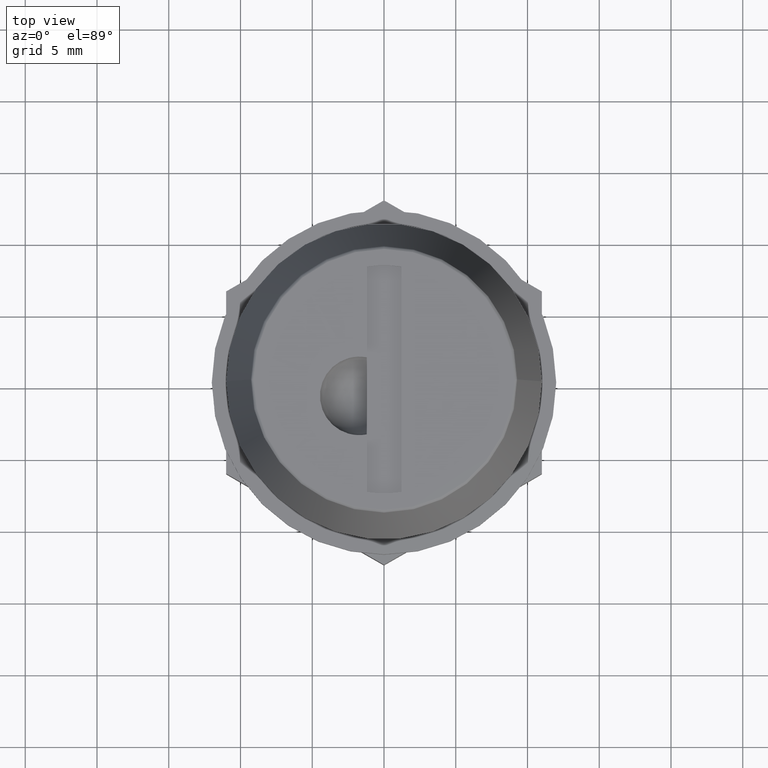
[diagram: clean part render]
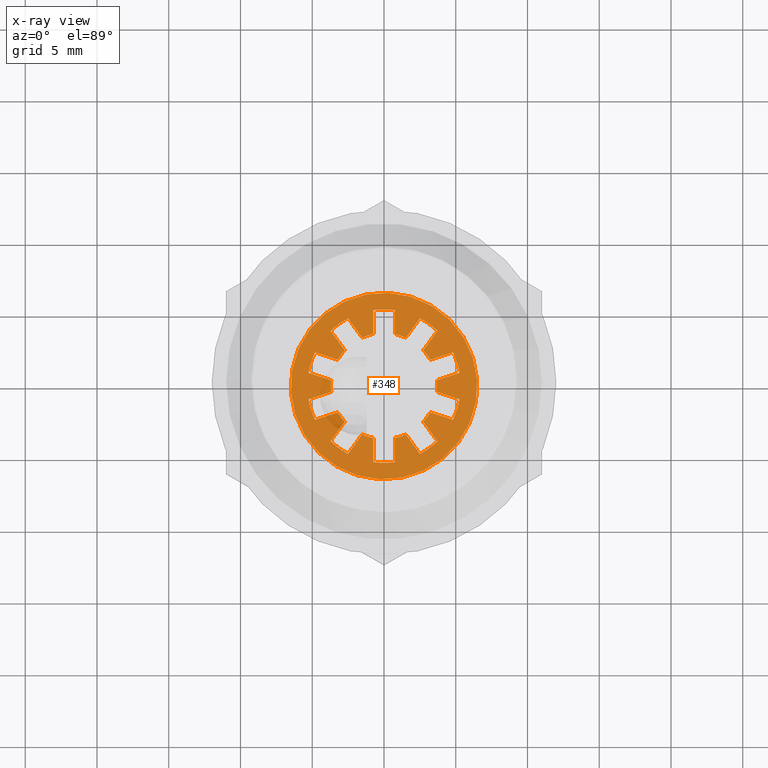
[diagram: x-ray — body ghosted, one internal face saturated and labeled with its STEP entity id]
A machine part, top view, then the same camera in x-ray: the body is ghosted and one INTERNAL B-rep face — a face not visible from any outside direction — is saturated and labeled: STEP entity #348.
In plain terms, the highlighted planar face has unit normal (0, 0, 1).
Its self-contained STEP definition (entity closure, byte-faithful):
#348=ADVANCED_FACE('',(#1300,#1301),#1299,.T.);
#1299=PLANE('',#2467);
#1300=FACE_OUTER_BOUND('',#2468,.T.);
#1301=FACE_BOUND('',#2469,.T.);
#2464=CARTESIAN_POINT('',(-3.86160911235E+000,-1.54599636178E+001,-2.13000000000E+001));
#2465=DIRECTION('',(0.00000000000E+000,-0.00000000000E+000,1.00000000000E+000));
#2466=DIRECTION('',(9.51056516295E-001,3.09016994375E-001,0.00000000000E+000));
#2467=AXIS2_PLACEMENT_3D('',#2464,#2465,#2466);
#2468=EDGE_LOOP('',(#3272,#3273));
#2469=EDGE_LOOP('',(#3274,#3275,#3276,#3277,#3278,#3279,#3280,#3281,#3282,#3283,#3284,#3285,#3286,#3287,#3288,#3289,#3290,#3291,#3292,#3293,#3294,#3295,#3296,#3297,#3298,#3299,#3300,#3301,#3302,#3303,#3304,#3305,#3306,#3307,#3308,#3309,#3310,#3311,#3312,#3313));
#3272=ORIENTED_EDGE('',*,*,#3894,.F.);
#3273=ORIENTED_EDGE('',*,*,#3895,.F.);
#3274=ORIENTED_EDGE('',*,*,#3783,.T.);
#3275=ORIENTED_EDGE('',*,*,#3778,.T.);
#3276=ORIENTED_EDGE('',*,*,#3775,.T.);
#3277=ORIENTED_EDGE('',*,*,#3889,.T.);
#3278=ORIENTED_EDGE('',*,*,#3793,.T.);
#3279=ORIENTED_EDGE('',*,*,#3784,.T.);
#3280=ORIENTED_EDGE('',*,*,#3789,.T.);
#3281=ORIENTED_EDGE('',*,*,#3887,.T.);
#3282=ORIENTED_EDGE('',*,*,#3803,.T.);
#3283=ORIENTED_EDGE('',*,*,#3794,.T.);
#3284=ORIENTED_EDGE('',*,*,#3799,.T.);
#3285=ORIENTED_EDGE('',*,*,#3885,.T.);
#3286=ORIENTED_EDGE('',*,*,#3813,.T.);
#3287=ORIENTED_EDGE('',*,*,#3804,.T.);
#3288=ORIENTED_EDGE('',*,*,#3809,.T.);
#3289=ORIENTED_EDGE('',*,*,#3883,.T.);
#3290=ORIENTED_EDGE('',*,*,#3823,.T.);
#3291=ORIENTED_EDGE('',*,*,#3814,.T.);
#3292=ORIENTED_EDGE('',*,*,#3819,.T.);
#3293=ORIENTED_EDGE('',*,*,#3881,.T.);
#3294=ORIENTED_EDGE('',*,*,#3833,.T.);
#3295=ORIENTED_EDGE('',*,*,#3824,.T.);
#3296=ORIENTED_EDGE('',*,*,#3829,.T.);
#3297=ORIENTED_EDGE('',*,*,#3879,.T.);
#3298=ORIENTED_EDGE('',*,*,#3843,.T.);
#3299=ORIENTED_EDGE('',*,*,#3834,.T.);
#3300=ORIENTED_EDGE('',*,*,#3839,.T.);
#3301=ORIENTED_EDGE('',*,*,#3877,.T.);
#3302=ORIENTED_EDGE('',*,*,#3853,.T.);
#3303=ORIENTED_EDGE('',*,*,#3844,.T.);
#3304=ORIENTED_EDGE('',*,*,#3849,.T.);
#3305=ORIENTED_EDGE('',*,*,#3875,.T.);
#3306=ORIENTED_EDGE('',*,*,#3863,.T.);
#3307=ORIENTED_EDGE('',*,*,#3854,.T.);
#3308=ORIENTED_EDGE('',*,*,#3859,.T.);
#3309=ORIENTED_EDGE('',*,*,#3873,.T.);
#3310=ORIENTED_EDGE('',*,*,#3871,.T.);
#3311=ORIENTED_EDGE('',*,*,#3893,.T.);
#3312=ORIENTED_EDGE('',*,*,#3865,.T.);
#3313=ORIENTED_EDGE('',*,*,#3890,.T.);
#3775=EDGE_CURVE('',#4747,#4739,#4748,.T.);
#3778=EDGE_CURVE('',#4767,#4747,#4768,.T.);
#3783=EDGE_CURVE('',#4788,#4767,#4801,.T.);
#3784=EDGE_CURVE('',#4807,#4808,#4809,.T.);
#3789=EDGE_CURVE('',#4808,#4835,#4843,.T.);
#3793=EDGE_CURVE('',#4856,#4807,#4869,.T.);
#3794=EDGE_CURVE('',#4875,#4876,#4877,.T.);
#3799=EDGE_CURVE('',#4876,#4903,#4911,.T.);
#3803=EDGE_CURVE('',#4924,#4875,#4937,.T.);
#3804=EDGE_CURVE('',#4943,#4944,#4945,.T.);
#3809=EDGE_CURVE('',#4944,#4971,#4979,.T.);
#3813=EDGE_CURVE('',#4992,#4943,#5005,.T.);
#3814=EDGE_CURVE('',#5011,#5012,#5013,.T.);
#3819=EDGE_CURVE('',#5012,#5039,#5047,.T.);
#3823=EDGE_CURVE('',#5060,#5011,#5073,.T.);
#3824=EDGE_CURVE('',#5079,#5080,#5081,.T.);
#3829=EDGE_CURVE('',#5080,#5107,#5115,.T.);
#3833=EDGE_CURVE('',#5128,#5079,#5141,.T.);
#3834=EDGE_CURVE('',#5147,#5148,#5149,.T.);
#3839=EDGE_CURVE('',#5148,#5175,#5183,.T.);
#3843=EDGE_CURVE('',#5196,#5147,#5209,.T.);
#3844=EDGE_CURVE('',#5215,#5216,#5217,.T.);
#3849=EDGE_CURVE('',#5216,#5243,#5251,.T.);
#3853=EDGE_CURVE('',#5264,#5215,#5277,.T.);
#3854=EDGE_CURVE('',#5283,#5284,#5285,.T.);
#3859=EDGE_CURVE('',#5284,#5311,#5319,.T.);
#3863=EDGE_CURVE('',#5332,#5283,#5345,.T.);
#3865=EDGE_CURVE('',#5359,#5351,#5360,.T.);
#3871=EDGE_CURVE('',#5380,#5394,#5401,.T.);
#3873=EDGE_CURVE('',#5311,#5380,#5413,.T.);
#3875=EDGE_CURVE('',#5243,#5332,#5425,.T.);
#3877=EDGE_CURVE('',#5175,#5264,#5437,.T.);
#3879=EDGE_CURVE('',#5107,#5196,#5449,.T.);
#3881=EDGE_CURVE('',#5039,#5128,#5461,.T.);
#3883=EDGE_CURVE('',#4971,#5060,#5473,.T.);
#3885=EDGE_CURVE('',#4903,#4992,#5485,.T.);
#3887=EDGE_CURVE('',#4835,#4924,#5497,.T.);
#3889=EDGE_CURVE('',#4739,#4856,#5509,.T.);
#3890=EDGE_CURVE('',#5351,#4788,#5515,.T.);
#3893=EDGE_CURVE('',#5394,#5359,#5533,.T.);
#3894=EDGE_CURVE('',#5539,#5540,#5541,.T.);
#3895=EDGE_CURVE('',#5540,#5539,#5547,.T.);
#4739=VERTEX_POINT('',#7036);
#4747=VERTEX_POINT('',#7041);
#4748=LINE('',#7042,#7043);
#4767=VERTEX_POINT('',#7052);
#4768=CIRCLE('',#7056,5.34999999998E+000);
#4788=VERTEX_POINT('',#7066);
#4801=LINE('',#7073,#7074);
#4807=VERTEX_POINT('',#7076);
#4808=VERTEX_POINT('',#7077);
#4809=CIRCLE('',#7081,5.34999999998E+000);
#4835=VERTEX_POINT('',#7094);
#4843=LINE('',#7099,#7100);
#4856=VERTEX_POINT('',#7106);
#4869=LINE('',#7113,#7114);
#4875=VERTEX_POINT('',#7116);
#4876=VERTEX_POINT('',#7117);
#4877=CIRCLE('',#7121,5.34999999998E+000);
#4903=VERTEX_POINT('',#7134);
#4911=LINE('',#7139,#7140);
#4924=VERTEX_POINT('',#7146);
#4937=LINE('',#7153,#7154);
#4943=VERTEX_POINT('',#7156);
#4944=VERTEX_POINT('',#7157);
#4945=CIRCLE('',#7161,5.34999999998E+000);
#4971=VERTEX_POINT('',#7174);
#4979=LINE('',#7179,#7180);
#4992=VERTEX_POINT('',#7186);
#5005=LINE('',#7193,#7194);
#5011=VERTEX_POINT('',#7196);
#5012=VERTEX_POINT('',#7197);
#5013=CIRCLE('',#7201,5.34999999998E+000);
#5039=VERTEX_POINT('',#7214);
#5047=LINE('',#7219,#7220);
#5060=VERTEX_POINT('',#7226);
#5073=LINE('',#7233,#7234);
#5079=VERTEX_POINT('',#7236);
#5080=VERTEX_POINT('',#7237);
#5081=CIRCLE('',#7241,5.34999999998E+000);
#5107=VERTEX_POINT('',#7254);
#5115=LINE('',#7259,#7260);
#5128=VERTEX_POINT('',#7266);
#5141=LINE('',#7273,#7274);
#5147=VERTEX_POINT('',#7276);
#5148=VERTEX_POINT('',#7277);
#5149=CIRCLE('',#7281,5.34999999998E+000);
#5175=VERTEX_POINT('',#7294);
#5183=LINE('',#7299,#7300);
#5196=VERTEX_POINT('',#7306);
#5209=LINE('',#7313,#7314);
#5215=VERTEX_POINT('',#7316);
#5216=VERTEX_POINT('',#7317);
#5217=CIRCLE('',#7321,5.34999999998E+000);
#5243=VERTEX_POINT('',#7334);
#5251=LINE('',#7339,#7340);
#5264=VERTEX_POINT('',#7346);
#5277=LINE('',#7353,#7354);
#5283=VERTEX_POINT('',#7356);
#5284=VERTEX_POINT('',#7357);
#5285=CIRCLE('',#7361,5.34999999998E+000);
#5311=VERTEX_POINT('',#7374);
#5319=LINE('',#7379,#7380);
#5332=VERTEX_POINT('',#7386);
#5345=LINE('',#7393,#7394);
#5351=VERTEX_POINT('',#7396);
#5359=VERTEX_POINT('',#7401);
#5360=LINE('',#7402,#7403);
#5380=VERTEX_POINT('',#7413);
#5394=VERTEX_POINT('',#7421);
#5401=LINE('',#7425,#7426);
#5413=CIRCLE('',#7435,3.70000000024E+000);
#5425=CIRCLE('',#7443,3.70000000024E+000);
#5437=CIRCLE('',#7451,3.70000000024E+000);
#5449=CIRCLE('',#7459,3.70000000024E+000);
#5461=CIRCLE('',#7467,3.70000000024E+000);
#5473=CIRCLE('',#7475,3.70000000024E+000);
#5485=CIRCLE('',#7483,3.70000000024E+000);
#5497=CIRCLE('',#7491,3.70000000024E+000);
#5509=CIRCLE('',#7499,3.70000000024E+000);
#5515=CIRCLE('',#7503,3.70000000024E+000);
#5533=CIRCLE('',#7515,5.34999999987E+000);
#5539=VERTEX_POINT('',#7516);
#5540=VERTEX_POINT('',#7517);
#5541=CIRCLE('',#7521,6.50000000000E+000);
#5547=CIRCLE('',#7525,6.50000000000E+000);
#7036=CARTESIAN_POINT('',(3.21409495578E+000,-1.83291942514E+000,-2.13000000000E+001));
#7041=CARTESIAN_POINT('',(4.80614440244E+000,-2.35020764689E+000,-2.13000000000E+001));
#7042=CARTESIAN_POINT('',(4.80614440244E+000,-2.35020764689E+000,-2.13000000000E+001));
#7043=VECTOR('',#7044,1.67397985202E+000);
#7044=DIRECTION('',(-9.51056516444E-001,3.09016993917E-001,0.00000000000E+000));
#7052=CARTESIAN_POINT('',(5.26966989376E+000,-9.23622873121E-001,-2.13000000000E+001));
#7053=CARTESIAN_POINT('',(2.36658271566E-030,-1.57772181044E-030,-2.13000000000E+001));
#7054=DIRECTION('',(-3.12041730293E-015,-6.26384236490E-015,-1.00000000000E+000));
#7055=DIRECTION('',(-9.84985026860E-001,1.72639789333E-001,1.99217589465E-015));
#7056=AXIS2_PLACEMENT_3D('',#7053,#7054,#7055);
#7066=CARTESIAN_POINT('',(3.67762044679E+000,-4.06334650421E-001,-2.13000000000E+001));
#7073=CARTESIAN_POINT('',(3.67762044679E+000,-4.06334650421E-001,-2.13000000000E+001));
#7074=VECTOR('',#7075,1.67397985261E+000);
#7075=DIRECTION('',(9.51056516295E-001,-3.09016994376E-001,0.00000000000E+000));
#7076=CARTESIAN_POINT('',(3.72036059496E+000,-3.84466084854E+000,-2.13000000000E+001));
#7077=CARTESIAN_POINT('',(2.50683510396E+000,-4.72633872726E+000,-2.13000000000E+001));
#7078=CARTESIAN_POINT('',(-4.73316543133E-030,1.57772181044E-030,-2.13000000000E+001));
#7079=DIRECTION('',(-6.20626479239E-015,-3.23341965163E-015,-1.00000000000E+000));
#7080=DIRECTION('',(-6.95394503806E-001,7.18628195993E-001,1.99217589465E-015));
#7081=AXIS2_PLACEMENT_3D('',#7078,#7079,#7080);
#7094=CARTESIAN_POINT('',(1.52289443366E+000,-3.37206057833E+000,-2.13000000000E+001));
#7099=CARTESIAN_POINT('',(2.50683510396E+000,-4.72633872726E+000,-2.13000000000E+001));
#7100=VECTOR('',#7101,1.67397985273E+000);
#7101=DIRECTION('',(-5.87785252427E-001,8.09016994277E-001,0.00000000000E+000));
#7106=CARTESIAN_POINT('',(2.73641992562E+000,-2.49038269930E+000,-2.13000000000E+001));
#7113=CARTESIAN_POINT('',(2.73641992562E+000,-2.49038269930E+000,-2.13000000000E+001));
#7114=VECTOR('',#7115,1.67397985242E+000);
#7115=DIRECTION('',(5.87785251968E-001,-8.09016994611E-001,0.00000000000E+000));
#7116=CARTESIAN_POINT('',(7.50000000026E-001,-5.29716905556E+000,-2.13000000000E+001));
#7117=CARTESIAN_POINT('',(-7.49999999688E-001,-5.29716905501E+000,-2.13000000000E+001));
#7118=CARTESIAN_POINT('',(5.52202633655E-030,-4.53595020502E-030,-2.13000000000E+001));
#7119=DIRECTION('',(-6.92153007433E-015,1.03205946867E-015,-1.00000000000E+000));
#7120=DIRECTION('',(-1.40186915888E-001,9.90125057058E-001,1.99217589465E-015));
#7121=AXIS2_PLACEMENT_3D('',#7118,#7119,#7120);
#7134=CARTESIAN_POINT('',(-7.50000000360E-001,-3.62318920259E+000,-2.13000000000E+001));
#7139=CARTESIAN_POINT('',(-7.49999999688E-001,-5.29716905501E+000,-2.13000000000E+001));
#7140=VECTOR('',#7141,1.67397985242E+000);
#7141=DIRECTION('',(-4.01690488656E-010,1.00000000000E+000,0.00000000000E+000));
#7146=CARTESIAN_POINT('',(7.50000000305E-001,-3.62318920283E+000,-2.13000000000E+001));
#7153=CARTESIAN_POINT('',(7.50000000305E-001,-3.62318920283E+000,-2.13000000000E+001));
#7154=VECTOR('',#7155,1.67397985273E+000);
#7155=DIRECTION('',(-1.66450499066E-010,-1.00000000000E+000,0.00000000000E+000));
#7156=CARTESIAN_POINT('',(-2.50683510433E+000,-4.72633872679E+000,-2.13000000000E+001));
#7157=CARTESIAN_POINT('',(-3.72036059530E+000,-3.84466084875E+000,-2.13000000000E+001));
#7158=CARTESIAN_POINT('',(-3.94430452611E-030,7.88860905221E-031,-2.13000000000E+001));
#7159=DIRECTION('',(-4.99300612204E-015,4.90332695036E-015,-1.00000000000E+000));
#7160=DIRECTION('',(4.68567309122E-001,8.83427799440E-001,1.99217589465E-015));
#7161=AXIS2_PLACEMENT_3D('',#7158,#7159,#7160);
#7174=CARTESIAN_POINT('',(-2.73641992530E+000,-2.49038269975E+000,-2.13000000000E+001));
#7179=CARTESIAN_POINT('',(-3.72036059530E+000,-3.84466084875E+000,-2.13000000000E+001));
#7180=VECTOR('',#7181,1.67397985261E+000);
#7181=DIRECTION('',(5.87785252291E-001,8.09016994376E-001,0.00000000000E+000));
#7186=CARTESIAN_POINT('',(-1.52289443402E+000,-3.37206057874E+000,-2.13000000000E+001));
#7193=CARTESIAN_POINT('',(-1.52289443402E+000,-3.37206057874E+000,-2.13000000000E+001));
#7194=VECTOR('',#7195,1.67397985202E+000);
#7195=DIRECTION('',(-5.87785252682E-001,-8.09016994092E-001,0.00000000000E+000));
#7196=CARTESIAN_POINT('',(-4.80614440189E+000,-2.35020764729E+000,-2.13000000000E+001));
#7197=CARTESIAN_POINT('',(-5.26966989346E+000,-9.23622872851E-001,-2.13000000000E+001));
#7198=CARTESIAN_POINT('',(3.94430452611E-031,2.36658271566E-030,-2.13000000000E+001));
#7199=DIRECTION('',(-1.15732353716E-015,6.90169019495E-015,-1.00000000000E+000));
#7200=DIRECTION('',(8.98344748064E-001,4.39291149042E-001,1.99217589465E-015));
#7201=AXIS2_PLACEMENT_3D('',#7198,#7199,#7200);
#7214=CARTESIAN_POINT('',(-3.67762044706E+000,-4.06334650341E-001,-2.13000000000E+001));
#7219=CARTESIAN_POINT('',(-5.26966989346E+000,-9.23622872851E-001,-2.13000000000E+001));
#7220=VECTOR('',#7221,1.67397985200E+000);
#7221=DIRECTION('',(9.51056516295E-001,3.09016994375E-001,0.00000000000E+000));
#7226=CARTESIAN_POINT('',(-3.21409495550E+000,-1.83291942478E+000,-2.13000000000E+001));
#7233=CARTESIAN_POINT('',(-3.21409495550E+000,-1.83291942478E+000,-2.13000000000E+001));
#7234=VECTOR('',#7235,1.67397985200E+000);
#7235=DIRECTION('',(-9.51056516295E-001,-3.09016994375E-001,0.00000000000E+000));
#7236=CARTESIAN_POINT('',(-5.26966989376E+000,9.23622873121E-001,-2.13000000000E+001));
#7237=CARTESIAN_POINT('',(-4.80614440244E+000,2.35020764689E+000,-2.13000000000E+001));
#7238=CARTESIAN_POINT('',(1.57772181044E-030,-2.36658271566E-030,-2.13000000000E+001));
#7239=DIRECTION('',(3.12041730293E-015,6.26384236490E-015,-1.00000000000E+000));
#7240=DIRECTION('',(9.84985026860E-001,-1.72639789333E-001,1.99217589465E-015));
#7241=AXIS2_PLACEMENT_3D('',#7238,#7239,#7240);
#7254=CARTESIAN_POINT('',(-3.21409495578E+000,1.83291942514E+000,-2.13000000000E+001));
#7259=CARTESIAN_POINT('',(-4.80614440244E+000,2.35020764689E+000,-2.13000000000E+001));
#7260=VECTOR('',#7261,1.67397985202E+000);
#7261=DIRECTION('',(9.51056516444E-001,-3.09016993917E-001,0.00000000000E+000));
#7266=CARTESIAN_POINT('',(-3.67762044679E+000,4.06334650421E-001,-2.13000000000E+001));
#7273=CARTESIAN_POINT('',(-3.67762044679E+000,4.06334650421E-001,-2.13000000000E+001));
#7274=VECTOR('',#7275,1.67397985261E+000);
#7275=DIRECTION('',(-9.51056516295E-001,3.09016994376E-001,0.00000000000E+000));
#7276=CARTESIAN_POINT('',(-3.72036059496E+000,3.84466084854E+000,-2.13000000000E+001));
#7277=CARTESIAN_POINT('',(-2.50683510396E+000,4.72633872726E+000,-2.13000000000E+001));
#7278=CARTESIAN_POINT('',(7.88860905221E-031,3.54987407349E-030,-2.13000000000E+001));
#7279=DIRECTION('',(6.20626479239E-015,3.23341965163E-015,-1.00000000000E+000));
#7280=DIRECTION('',(6.95394503806E-001,-7.18628195993E-001,1.99217589465E-015));
#7281=AXIS2_PLACEMENT_3D('',#7278,#7279,#7280);
#7294=CARTESIAN_POINT('',(-1.52289443366E+000,3.37206057833E+000,-2.13000000000E+001));
#7299=CARTESIAN_POINT('',(-2.50683510396E+000,4.72633872726E+000,-2.13000000000E+001));
#7300=VECTOR('',#7301,1.67397985273E+000);
#7301=DIRECTION('',(5.87785252427E-001,-8.09016994277E-001,0.00000000000E+000));
#7306=CARTESIAN_POINT('',(-2.73641992562E+000,2.49038269930E+000,-2.13000000000E+001));
#7313=CARTESIAN_POINT('',(-2.73641992562E+000,2.49038269930E+000,-2.13000000000E+001));
#7314=VECTOR('',#7315,1.67397985242E+000);
#7315=DIRECTION('',(-5.87785251968E-001,8.09016994611E-001,0.00000000000E+000));
#7316=CARTESIAN_POINT('',(-7.50000000026E-001,5.29716905556E+000,-2.13000000000E+001));
#7317=CARTESIAN_POINT('',(7.49999999688E-001,5.29716905501E+000,-2.13000000000E+001));
#7318=CARTESIAN_POINT('',(2.36658271566E-030,-4.24012736556E-030,-2.13000000000E+001));
#7319=DIRECTION('',(6.92153007433E-015,-1.03205946867E-015,-1.00000000000E+000));
#7320=DIRECTION('',(1.40186915888E-001,-9.90125057058E-001,1.99217589465E-015));
#7321=AXIS2_PLACEMENT_3D('',#7318,#7319,#7320);
#7334=CARTESIAN_POINT('',(7.50000000360E-001,3.62318920259E+000,-2.13000000000E+001));
#7339=CARTESIAN_POINT('',(7.49999999688E-001,5.29716905501E+000,-2.13000000000E+001));
#7340=VECTOR('',#7341,1.67397985242E+000);
#7341=DIRECTION('',(4.01690488656E-010,-1.00000000000E+000,0.00000000000E+000));
#7346=CARTESIAN_POINT('',(-7.50000000305E-001,3.62318920283E+000,-2.13000000000E+001));
#7353=CARTESIAN_POINT('',(-7.50000000305E-001,3.62318920283E+000,-2.13000000000E+001));
#7354=VECTOR('',#7355,1.67397985273E+000);
#7355=DIRECTION('',(1.66450499066E-010,1.00000000000E+000,0.00000000000E+000));
#7356=CARTESIAN_POINT('',(2.50683510433E+000,4.72633872679E+000,-2.13000000000E+001));
#7357=CARTESIAN_POINT('',(3.72036059530E+000,3.84466084875E+000,-2.13000000000E+001));
#7358=CARTESIAN_POINT('',(-7.09974814699E-030,0.00000000000E+000,-2.13000000000E+001));
#7359=DIRECTION('',(4.99300612204E-015,-4.90332695036E-015,-1.00000000000E+000));
#7360=DIRECTION('',(-4.68567309122E-001,-8.83427799440E-001,1.99217589465E-015));
#7361=AXIS2_PLACEMENT_3D('',#7358,#7359,#7360);
#7374=CARTESIAN_POINT('',(2.73641992530E+000,2.49038269975E+000,-2.13000000000E+001));
#7379=CARTESIAN_POINT('',(3.72036059530E+000,3.84466084875E+000,-2.13000000000E+001));
#7380=VECTOR('',#7381,1.67397985261E+000);
#7381=DIRECTION('',(-5.87785252291E-001,-8.09016994376E-001,0.00000000000E+000));
#7386=CARTESIAN_POINT('',(1.52289443402E+000,3.37206057874E+000,-2.13000000000E+001));
#7393=CARTESIAN_POINT('',(1.52289443402E+000,3.37206057874E+000,-2.13000000000E+001));
#7394=VECTOR('',#7395,1.67397985202E+000);
#7395=DIRECTION('',(5.87785252682E-001,8.09016994092E-001,0.00000000000E+000));
#7396=CARTESIAN_POINT('',(3.67762044706E+000,4.06334650341E-001,-2.13000000000E+001));
#7401=CARTESIAN_POINT('',(5.26966989346E+000,9.23622872851E-001,-2.13000000000E+001));
#7402=CARTESIAN_POINT('',(5.26966989346E+000,9.23622872851E-001,-2.13000000000E+001));
#7403=VECTOR('',#7404,1.67397985200E+000);
#7404=DIRECTION('',(-9.51056516295E-001,-3.09016994375E-001,0.00000000000E+000));
#7413=CARTESIAN_POINT('',(3.21409495550E+000,1.83291942478E+000,-2.13000000000E+001));
#7421=CARTESIAN_POINT('',(4.80614440189E+000,2.35020764729E+000,-2.13000000000E+001));
#7425=CARTESIAN_POINT('',(3.21409495550E+000,1.83291942478E+000,-2.13000000000E+001));
#7426=VECTOR('',#7427,1.67397985200E+000);
#7427=DIRECTION('',(9.51056516295E-001,3.09016994375E-001,0.00000000000E+000));
#7432=CARTESIAN_POINT('',(-7.88860905221E-031,-2.36658271566E-030,-2.13000000000E+001));
#7433=DIRECTION('',(3.87656467600E-015,-5.68612306136E-015,-1.00000000000E+000));
#7434=DIRECTION('',(-7.39572952841E-001,-6.73076405341E-001,9.60192886162E-016));
#7435=AXIS2_PLACEMENT_3D('',#7432,#7433,#7434);
#7440=CARTESIAN_POINT('',(5.52202633655E-030,-7.88860905221E-031,-2.13000000000E+001));
#7441=DIRECTION('',(6.47842598086E-015,-2.32158264264E-015,-1.00000000000E+000));
#7442=DIRECTION('',(-2.02702702703E-001,-9.79240325108E-001,9.60192886162E-016));
#7443=AXIS2_PLACEMENT_3D('',#7440,#7441,#7442);
#7448=CARTESIAN_POINT('',(6.31088724177E-030,1.77493703675E-030,-2.13000000000E+001));
#7449=DIRECTION('',(6.60574875464E-015,1.92972343788E-015,-1.00000000000E+000));
#7450=DIRECTION('',(4.11593090256E-001,-9.11367723838E-001,9.60192886162E-016));
#7451=AXIS2_PLACEMENT_3D('',#7448,#7449,#7450);
#7456=CARTESIAN_POINT('',(1.57772181044E-030,-7.88860905221E-030,-2.13000000000E+001));
#7457=DIRECTION('',(4.20990002529E-015,5.44394075401E-015,-1.00000000000E+000));
#7458=DIRECTION('',(8.68674312272E-001,-4.95383628312E-001,9.60192886162E-016));
#7459=AXIS2_PLACEMENT_3D('',#7456,#7457,#7458);
#7464=CARTESIAN_POINT('',(1.38050658414E-030,2.36658271566E-030,-2.13000000000E+001));
#7465=DIRECTION('',(2.06012575513E-016,6.87875773486E-015,-1.00000000000E+000));
#7466=DIRECTION('',(9.93951472154E-001,1.09820175759E-001,9.60192886162E-016));
#7467=AXIS2_PLACEMENT_3D('',#7464,#7465,#7466);
#7472=CARTESIAN_POINT('',(1.57772181044E-030,2.36658271566E-030,-2.13000000000E+001));
#7473=DIRECTION('',(-3.87656467600E-015,5.68612306136E-015,-1.00000000000E+000));
#7474=DIRECTION('',(7.39572952841E-001,6.73076405341E-001,9.60192886162E-016));
#7475=AXIS2_PLACEMENT_3D('',#7472,#7473,#7474);
#7480=CARTESIAN_POINT('',(1.57772181044E-030,1.18329135783E-030,-2.13000000000E+001));
#7481=DIRECTION('',(-6.47842598086E-015,2.32158264264E-015,-1.00000000000E+000));
#7482=DIRECTION('',(2.02702702703E-001,9.79240325108E-001,9.60192886162E-016));
#7483=AXIS2_PLACEMENT_3D('',#7480,#7481,#7482);
#7488=CARTESIAN_POINT('',(3.15544362088E-030,9.86076131526E-031,-2.13000000000E+001));
#7489=DIRECTION('',(-6.60574875464E-015,-1.92972343788E-015,-1.00000000000E+000));
#7490=DIRECTION('',(-4.11593090256E-001,9.11367723838E-001,9.60192886162E-016));
#7491=AXIS2_PLACEMENT_3D('',#7488,#7489,#7490);
#7496=CARTESIAN_POINT('',(-4.73316543133E-030,5.52202633655E-030,-2.13000000000E+001));
#7497=DIRECTION('',(-4.20990002529E-015,-5.44394075401E-015,-1.00000000000E+000));
#7498=DIRECTION('',(-8.68674312272E-001,4.95383628312E-001,9.60192886162E-016));
#7499=AXIS2_PLACEMENT_3D('',#7496,#7497,#7498);
#7500=CARTESIAN_POINT('',(-2.85962078143E-030,0.00000000000E+000,-2.13000000000E+001));
#7501=DIRECTION('',(-2.06012575513E-016,-6.87875773486E-015,-1.00000000000E+000));
#7502=DIRECTION('',(-9.93951472154E-001,-1.09820175759E-001,9.60192886162E-016));
#7503=AXIS2_PLACEMENT_3D('',#7500,#7501,#7502);
#7512=CARTESIAN_POINT('',(1.57772181044E-030,-6.31088724177E-030,-2.13000000000E+001));
#7513=DIRECTION('',(2.44070819659E-015,-6.50287634465E-015,-1.00000000000E+000));
#7514=DIRECTION('',(-8.98344748064E-001,-4.39291149042E-001,6.64058631551E-016));
#7515=AXIS2_PLACEMENT_3D('',#7512,#7513,#7514);
#7516=CARTESIAN_POINT('',(6.18186735592E+000,2.00861046344E+000,-2.13000000000E+001));
#7517=CARTESIAN_POINT('',(-6.18186735592E+000,-2.00861046344E+000,-2.13000000000E+001));
#7518=CARTESIAN_POINT('',(1.57772181044E-030,-6.31088724177E-030,-2.13000000000E+001));
#7519=DIRECTION('',(2.15785413849E-015,-6.64119215766E-015,-1.00000000000E+000));
#7520=DIRECTION('',(-9.51056516295E-001,-3.09016994375E-001,1.24956849897E-030));
#7521=AXIS2_PLACEMENT_3D('',#7518,#7519,#7520);
#7522=CARTESIAN_POINT('',(1.57772181044E-030,-6.31088724177E-030,-2.13000000000E+001));
#7523=DIRECTION('',(2.15785413849E-015,-6.64119215766E-015,-1.00000000000E+000));
#7524=DIRECTION('',(-9.51056516295E-001,-3.09016994375E-001,1.24956849897E-030));
#7525=AXIS2_PLACEMENT_3D('',#7522,#7523,#7524);